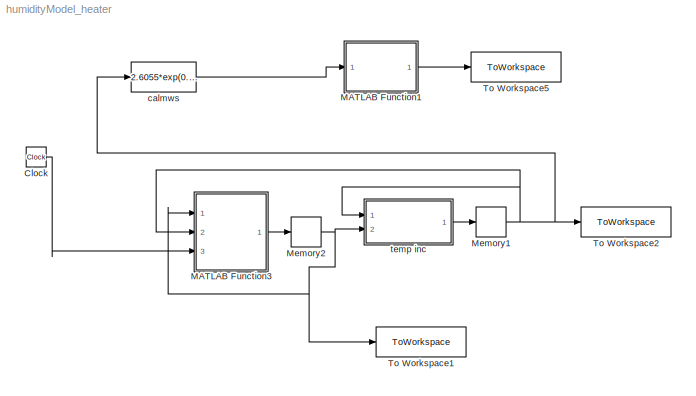
MODEL humidityModel_heater
KIND model
BLOCK [Clock] Clock
  SID = 109
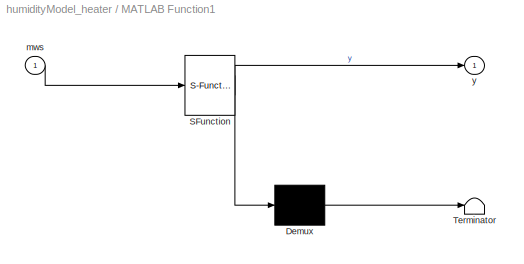
BLOCK [SubSystem] MATLAB Function1
  ErrorFcn = Stateflow.Translate.translate
  PermitHierarchicalResolution = ExplicitOnly
  Ports = [1, 1]
  RequestExecContextInheritance = off
  SFBlockType = MATLAB Function
  SID = 396
  TreatAsAtomicUnit = on
BLOCK [Demux] MATLAB Function1/ Demux 
  Outputs = 1
  Ports = [1, 1]
  SID = 396::20
BLOCK [S-Function] MATLAB Function1/ SFunction 
  EnableBusSupport = on
  FunctionName = sf_sfun
  Parameters = initMW
  PortCounts = [1 2]
  Ports = [1, 2]
  SFcnIsStateOwnerBlock = off
  SFunctionDeploymentMode = off
  SID = 396::19
  Tag = Stateflow S-Function 1
BLOCK [Terminator] MATLAB Function1/ Terminator 
  SID = 396::21
BLOCK [Inport] MATLAB Function1/mws
  IconDisplay = Port number
  SID = 396::22
BLOCK [Outport] MATLAB Function1/y
  IconDisplay = Port number
  SID = 396::5
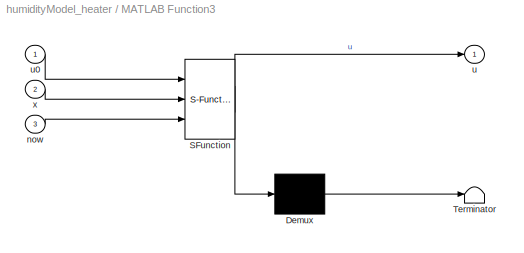
BLOCK [SubSystem] MATLAB Function3
  ErrorFcn = Stateflow.Translate.translate
  PermitHierarchicalResolution = ExplicitOnly
  Ports = [3, 1]
  RequestExecContextInheritance = off
  SFBlockType = MATLAB Function
  SID = 414
  TreatAsAtomicUnit = on
BLOCK [Demux] MATLAB Function3/ Demux 
  Outputs = 1
  Ports = [1, 1]
  SID = 414::20
BLOCK [S-Function] MATLAB Function3/ SFunction 
  EnableBusSupport = on
  FunctionName = sf_sfun
  Parameters = fixedStep,maxT,minT,startHeater
  PortCounts = [3 2]
  Ports = [3, 2]
  SFcnIsStateOwnerBlock = off
  SFunctionDeploymentMode = off
  SID = 414::19
  Tag = Stateflow S-Function 6
BLOCK [Terminator] MATLAB Function3/ Terminator 
  SID = 414::21
BLOCK [Inport] MATLAB Function3/now
  IconDisplay = Port number
  Port = 3
  SID = 414::27
BLOCK [Outport] MATLAB Function3/u
  IconDisplay = Port number
  SID = 414::5
BLOCK [Inport] MATLAB Function3/u0
  IconDisplay = Port number
  SID = 414::23
BLOCK [Inport] MATLAB Function3/x
  IconDisplay = Port number
  Port = 2
  SID = 414::1
BLOCK [Memory] Memory1
  InitialCondition = initT
  SID = 410
BLOCK [Memory] Memory2
  SID = 411
BLOCK [ToWorkspace] To Workspace1
  FixptAsFi = on
  MaxDataPoints = inf
  Ports = [1]
  SID = 413
  SampleTime = -1
  VariableName = heaterOn
BLOCK [ToWorkspace] To Workspace2
  FixptAsFi = on
  MaxDataPoints = inf
  Ports = [1]
  SID = 107
  SampleTime = -1
  VariableName = temp
BLOCK [ToWorkspace] To Workspace5
  FixptAsFi = on
  MaxDataPoints = inf
  Ports = [1]
  SID = 397
  SampleTime = -1
  VariableName = rh
BLOCK [Fcn] calmws
  Expr = 2.6055*exp(0.0262*u)
  SID = 395
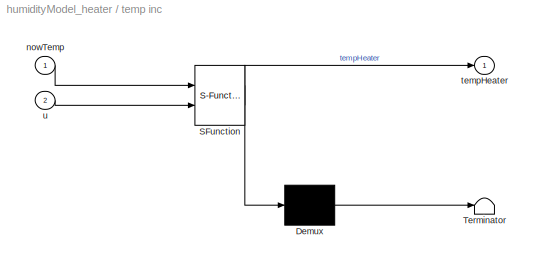
BLOCK [SubSystem] temp inc
  ErrorFcn = Stateflow.Translate.translate
  PermitHierarchicalResolution = ExplicitOnly
  Ports = [2, 1]
  RequestExecContextInheritance = off
  SFBlockType = MATLAB Function
  SID = 412
  TreatAsAtomicUnit = on
BLOCK [Demux] temp inc/ Demux 
  Outputs = 1
  Ports = [1, 1]
  SID = 412::20
BLOCK [S-Function] temp inc/ SFunction 
  EnableBusSupport = on
  FunctionName = sf_sfun
  Parameters = Tdelta,fixedStep
  PortCounts = [2 2]
  Ports = [2, 2]
  SFcnIsStateOwnerBlock = off
  SFunctionDeploymentMode = off
  SID = 412::19
  Tag = Stateflow S-Function 5
BLOCK [Terminator] temp inc/ Terminator 
  SID = 412::21
BLOCK [Inport] temp inc/nowTemp
  IconDisplay = Port number
  SID = 412::33
BLOCK [Outport] temp inc/tempHeater
  IconDisplay = Port number
  SID = 412::5
BLOCK [Inport] temp inc/u
  IconDisplay = Port number
  Port = 2
  SID = 412::27
LINE Clock:1 -> MATLAB Function3:3
LINE MATLAB Function1/ Demux :1 -> MATLAB Function1/ Terminator :1
LINE MATLAB Function1/ SFunction :1 -> MATLAB Function1/ Demux :1
LINE MATLAB Function1/ SFunction :2 -> MATLAB Function1/y:1
LINE MATLAB Function1/mws:1 -> MATLAB Function1/ SFunction :1
LINE MATLAB Function1:1 -> To Workspace5:1
LINE MATLAB Function3/ Demux :1 -> MATLAB Function3/ Terminator :1
LINE MATLAB Function3/ SFunction :1 -> MATLAB Function3/ Demux :1
LINE MATLAB Function3/ SFunction :2 -> MATLAB Function3/u:1
LINE MATLAB Function3/now:1 -> MATLAB Function3/ SFunction :3
LINE MATLAB Function3/u0:1 -> MATLAB Function3/ SFunction :1
LINE MATLAB Function3/x:1 -> MATLAB Function3/ SFunction :2
LINE MATLAB Function3:1 -> Memory2:1
NET Memory1:1 -> MATLAB Function3:2, To Workspace2:1, calmws:1, temp inc:1
NET Memory2:1 -> MATLAB Function3:1, To Workspace1:1, temp inc:2
LINE calmws:1 -> MATLAB Function1:1
LINE temp inc/ Demux :1 -> temp inc/ Terminator :1
LINE temp inc/ SFunction :1 -> temp inc/ Demux :1
LINE temp inc/ SFunction :2 -> temp inc/tempHeater:1
LINE temp inc/nowTemp:1 -> temp inc/ SFunction :1
LINE temp inc/u:1 -> temp inc/ SFunction :2
LINE temp inc:1 -> Memory1:1
note: NET lines group one-source signal fan-out (src -> all destinations, sorted); 1:1 wires keep LINE
CHART MATLAB Function1 states=1 transitions=1
  STATE_LABEL 'eML_blk_kernel()'
CHART temp inc states=1 transitions=1
  STATE_LABEL 'eML_blk_kernel()'
CHART MATLAB Function3 states=1 transitions=1
  STATE_LABEL 'eML_blk_kernel()'
